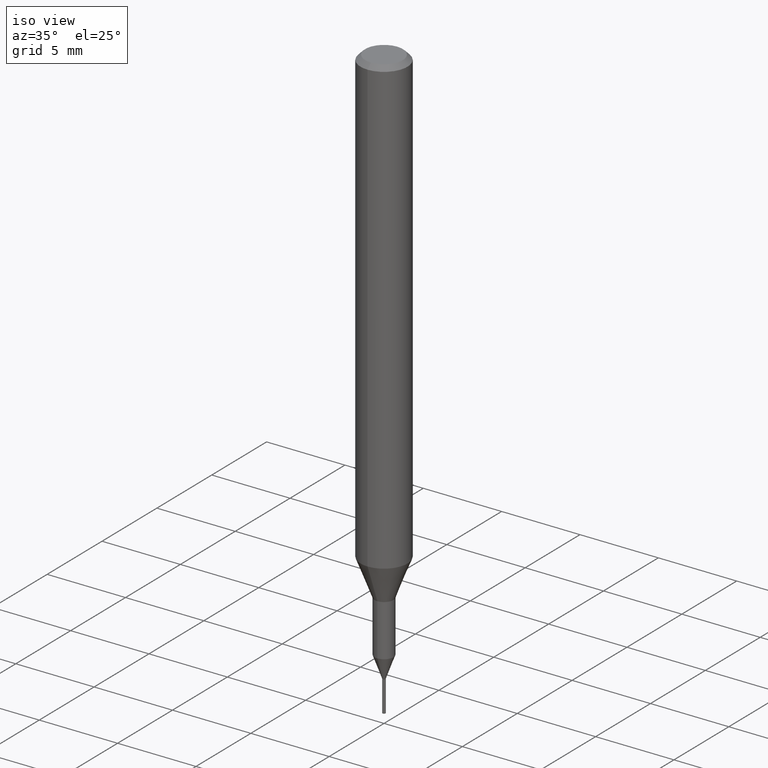
[diagram: clean part render]
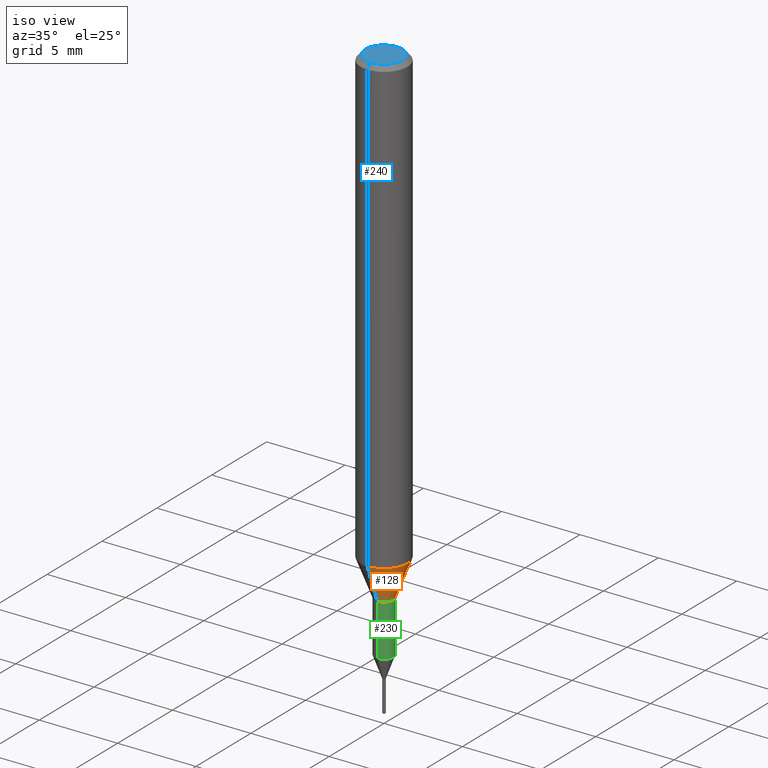
[diagram: same view with three faces highlighted in distinct colors, each labeled with its STEP entity id]
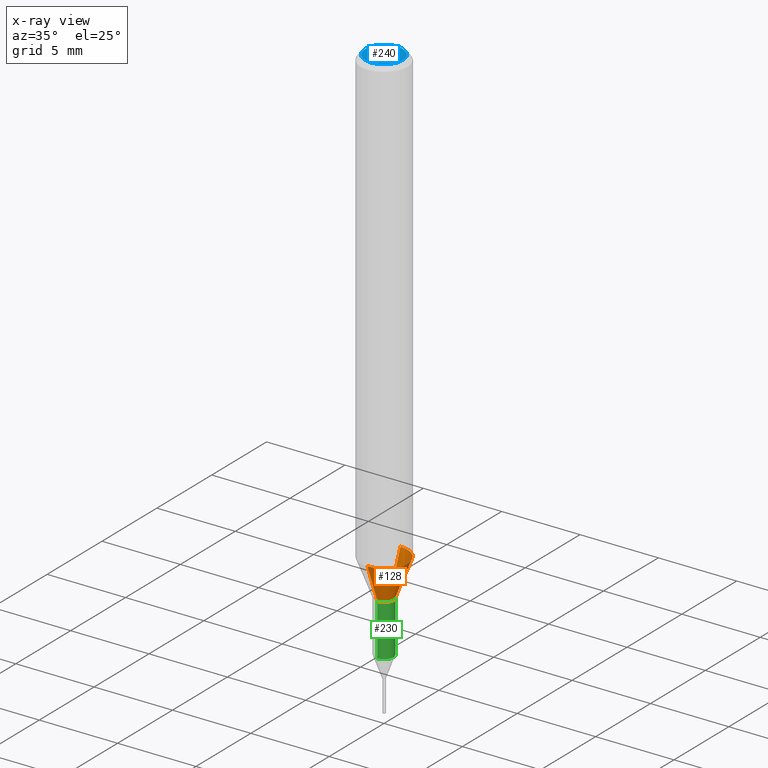
[diagram: x-ray of the same camera — body ghosted, the three highlighted faces saturated]
A machine part, iso view with three faces highlighted in distinct colors.
The next image is the same camera in x-ray (body ghosted, the three faces saturated) — at least one of them is partly hidden behind the body in this view.
Their STEP definitions:

[orange] entity #128 — the highlighted conical surface has half-angle 20.997 deg.
#116=EDGE_CURVE('',#156,#118,#294,.T.);
#118=VERTEX_POINT('',#296);
#128=ADVANCED_FACE('',(#308),#309,.T.);
#156=VERTEX_POINT('',#341);
#160=EDGE_CURVE('',#256,#156,#346,.T.);
#166=EDGE_CURVE('',#180,#256,#352,.T.);
#180=VERTEX_POINT('',#368);
#250=EDGE_CURVE('',#180,#118,#447,.T.);
#256=VERTEX_POINT('',#453);
#294=LINE('',#485,#486);
#296=CARTESIAN_POINT('',(1.83690953073357E-016,-1.5,-28.955));
#308=FACE_OUTER_BOUND('',#503,.T.);
#309=CONICAL_SURFACE('',#504,1.05,0.366459241971866);
#341=CARTESIAN_POINT('',(7.34763812293426E-017,-0.6,-31.3));
#346=CIRCLE('',#548,0.6);
#352=LINE('',#556,#557);
#368=CARTESIAN_POINT('',(0.0,1.5,-28.955));
#447=CIRCLE('',#683,1.5);
#453=CARTESIAN_POINT('',(0.0,0.6,-31.3));
#485=CARTESIAN_POINT('',(1.2858366715135E-016,-1.05,-30.1275));
#486=VECTOR('',#716,1.0);
#503=EDGE_LOOP('',(#735,#736,#737,#738));
#504=AXIS2_PLACEMENT_3D('',#739,#740,#741);
#548=AXIS2_PLACEMENT_3D('',#797,#798,#799);
#556=CARTESIAN_POINT('',(-1.2858366715135E-016,1.05,-30.1275));
#557=VECTOR('',#803,1.0);
#683=AXIS2_PLACEMENT_3D('',#921,#922,#923);
#716=DIRECTION('',(4.38791184365088E-017,-0.358312026550805,0.93360189140182));
#735=ORIENTED_EDGE('',*,*,#166,.F.);
#736=ORIENTED_EDGE('',*,*,#250,.T.);
#737=ORIENTED_EDGE('',*,*,#116,.F.);
#738=ORIENTED_EDGE('',*,*,#160,.F.);
#739=CARTESIAN_POINT('',(0.0,0.0,-30.1275));
#740=DIRECTION('',(-0.0,-0.0,1.0));
#741=DIRECTION('',(0.0,1.0,0.0));
#797=CARTESIAN_POINT('',(0.0,0.0,-31.3));
#798=DIRECTION('',(0.0,0.0,-1.0));
#799=DIRECTION('',(0.0,1.0,0.0));
#803=DIRECTION('',(4.38791184365088E-017,-0.358312026550805,-0.93360189140182));
#921=CARTESIAN_POINT('',(0.0,0.0,-28.955));
#922=DIRECTION('',(0.0,0.0,-1.0));
#923=DIRECTION('',(0.0,1.0,0.0));

[blue] entity #240 — the highlighted planar face has unit normal (-0, 0, 1).
#138=VERTEX_POINT('',#321);
#164=EDGE_CURVE('',#138,#238,#350,.T.);
#192=EDGE_CURVE('',#238,#138,#380,.T.);
#238=VERTEX_POINT('',#432);
#240=ADVANCED_FACE('',(#434),#435,.T.);
#321=CARTESIAN_POINT('',(0.0,1.2,0.0));
#350=CIRCLE('',#553,1.2);
#380=CIRCLE('',#594,1.2);
#432=CARTESIAN_POINT('',(1.46952762458685E-016,-1.2,0.0));
#434=FACE_OUTER_BOUND('',#666,.T.);
#435=PLANE('',#667);
#553=AXIS2_PLACEMENT_3D('',#800,#801,#802);
#594=AXIS2_PLACEMENT_3D('',#829,#830,#831);
#666=EDGE_LOOP('',(#896,#897));
#667=AXIS2_PLACEMENT_3D('',#898,#899,#900);
#800=CARTESIAN_POINT('',(0.0,0.0,0.0));
#801=DIRECTION('',(0.0,0.0,-1.0));
#802=DIRECTION('',(0.0,1.0,0.0));
#829=CARTESIAN_POINT('',(0.0,0.0,0.0));
#830=DIRECTION('',(0.0,0.0,-1.0));
#831=DIRECTION('',(0.0,1.0,0.0));
#896=ORIENTED_EDGE('',*,*,#164,.F.);
#897=ORIENTED_EDGE('',*,*,#192,.F.);
#898=CARTESIAN_POINT('',(0.0,0.6,0.0));
#899=DIRECTION('',(-0.0,0.0,1.0));
#900=DIRECTION('',(0.0,-1.0,0.0));

[green] entity #230 — the highlighted cylindrical surface (edge-blend (fillet) strip) has radius 0.5999 mm, axis along (-0, -0, 1).
#140=VERTEX_POINT('',#323);
#148=EDGE_CURVE('',#212,#254,#332,.T.);
#170=VERTEX_POINT('',#356);
#206=EDGE_CURVE('',#140,#170,#395,.T.);
#208=EDGE_CURVE('',#254,#170,#397,.T.);
#212=VERTEX_POINT('',#401);
#230=ADVANCED_FACE('',(#423),#424,.T.);
#246=EDGE_CURVE('',#140,#212,#443,.T.);
#254=VERTEX_POINT('',#451);
#323=CARTESIAN_POINT('',(0.0,0.59995,-31.3));
#332=CIRCLE('',#531,0.59995);
#356=CARTESIAN_POINT('',(7.34702581975735E-017,-0.59995,-31.3));
#395=CIRCLE('',#611,0.59995);
#397=LINE('',#614,#615);
#401=CARTESIAN_POINT('',(0.0,0.59995,-34.599));
#423=FACE_OUTER_BOUND('',#650,.T.);
#424=CYLINDRICAL_SURFACE('',#651,0.59995);
#443=LINE('',#676,#677);
#451=CARTESIAN_POINT('',(7.34702581975735E-017,-0.59995,-34.599));
#531=AXIS2_PLACEMENT_3D('',#775,#776,#777);
#611=AXIS2_PLACEMENT_3D('',#847,#848,#849);
#614=CARTESIAN_POINT('',(7.34702581975735E-017,-0.59995,-32.9495));
#615=VECTOR('',#850,1.0);
#650=EDGE_LOOP('',(#883,#884,#885,#886));
#651=AXIS2_PLACEMENT_3D('',#887,#888,#889);
#676=CARTESIAN_POINT('',(-7.34702581975735E-017,0.59995,-32.9495));
#677=VECTOR('',#917,1.0);
#775=CARTESIAN_POINT('',(0.0,0.0,-34.599));
#776=DIRECTION('',(0.0,0.0,-1.0));
#777=DIRECTION('',(0.0,1.0,0.0));
#847=CARTESIAN_POINT('',(0.0,0.0,-31.3));
#848=DIRECTION('',(0.0,0.0,-1.0));
#849=DIRECTION('',(0.0,1.0,0.0));
#850=DIRECTION('',(-0.0,-0.0,1.0));
#883=ORIENTED_EDGE('',*,*,#246,.F.);
#884=ORIENTED_EDGE('',*,*,#206,.T.);
#885=ORIENTED_EDGE('',*,*,#208,.F.);
#886=ORIENTED_EDGE('',*,*,#148,.F.);
#887=CARTESIAN_POINT('',(0.0,0.0,-32.9495));
#888=DIRECTION('',(-0.0,-0.0,1.0));
#889=DIRECTION('',(0.0,1.0,0.0));
#917=DIRECTION('',(0.0,0.0,-1.0));